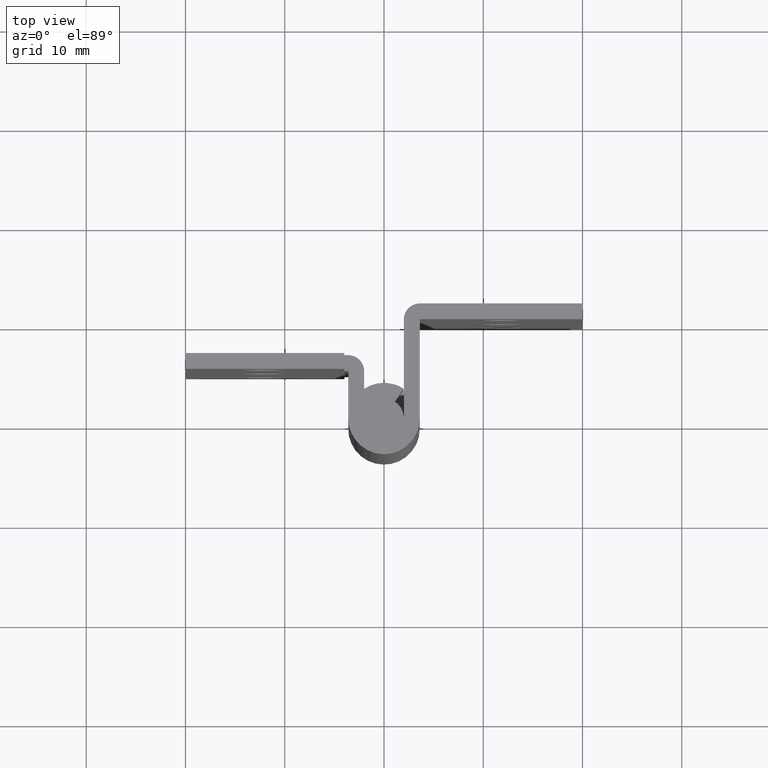
[diagram: clean part render]
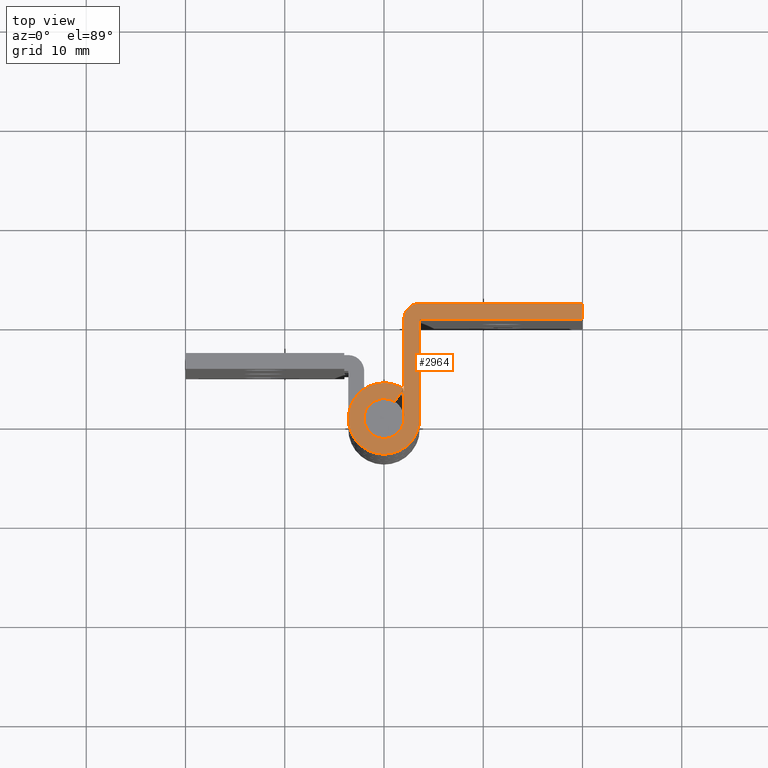
[diagram: same view with one face highlighted and labeled with its STEP entity id]
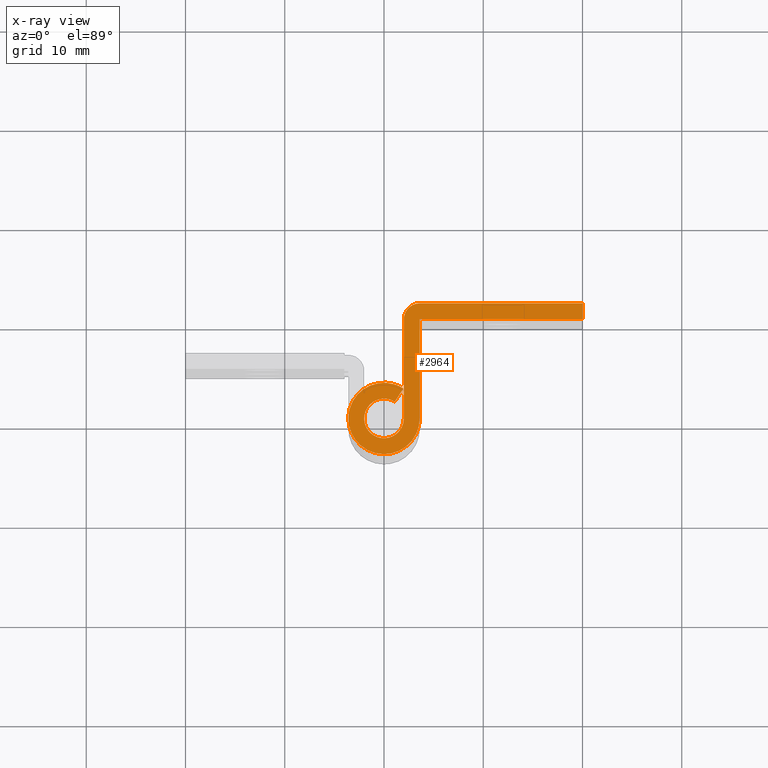
[diagram: x-ray of the same camera — body ghosted, the highlighted face saturated]
A machine part, top view. The second image highlights one B-rep face of the part: STEP entity #2964.
The next image is the same camera in x-ray: the body ghosted, the highlighted face saturated — about 0% of this face is hidden behind the body in this view.
In plain terms, the highlighted face is a freeform B-spline surface patch.
Its self-contained STEP definition (entity closure, byte-faithful):
#2736=CARTESIAN_POINT('',(3.600008000000110,11.599999000000020,60.0));
#2737=VERTEX_POINT('',#2736);
#2738=CARTESIAN_POINT('',(2.000008000000110,9.999999000000001,60.0));
#2739=VERTEX_POINT('',#2738);
#2740=CARTESIAN_POINT('',(3.600008000000110,11.599999000000000,60.0));
#2741=CARTESIAN_POINT('',(2.000008000000111,11.599999000000000,60.0));
#2742=CARTESIAN_POINT('',(2.000008000000110,9.999999000000001,60.0));
#2750=(BOUNDED_CURVE()B_SPLINE_CURVE(2,(#2740,#2741,#2742),.UNSPECIFIED.,.F.,.U.)CURVE()GEOMETRIC_REPRESENTATION_ITEM()QUASI_UNIFORM_CURVE()RATIONAL_B_SPLINE_CURVE((1.0,0.707106781186548,1.0))REPRESENTATION_ITEM(''));
#2751=EDGE_CURVE('',#2737,#2739,#2750,.T.);
#2874=CARTESIAN_POINT('',(-4.777198900374517,-4.358834767772723,60.0));
#2875=CARTESIAN_POINT('',(21.178750080096830,-4.358834767772723,60.0));
#2876=CARTESIAN_POINT('',(-4.777198900374517,12.359220053659460,60.0));
#2877=CARTESIAN_POINT('',(21.178750080096830,12.359220053659460,60.0));
#2878=B_SPLINE_SURFACE_WITH_KNOTS('',1,1,((#2874,#2876),(#2875,#2877)),.UNSPECIFIED.,.F.,.F.,.U.,(2,2),(2,2),(0.0,25.955948980471341),(0.0,16.718054821432190),.UNSPECIFIED.);
#2879=CARTESIAN_POINT('',(20.000008000000101,11.599999000000020,60.0));
#2880=VERTEX_POINT('',#2879);
#2881=CARTESIAN_POINT('',(20.000008000000101,11.599999000000020,60.0));
#2882=CARTESIAN_POINT('',(3.600008000000110,11.599999000000020,60.0));
#2883=QUASI_UNIFORM_CURVE('',1,(#2881,#2882),.UNSPECIFIED.,.F.,.U.);
#2884=EDGE_CURVE('',#2880,#2737,#2883,.T.);
#2885=ORIENTED_EDGE('',*,*,#2884,.T.);
#2886=ORIENTED_EDGE('',*,*,#2751,.T.);
#2887=CARTESIAN_POINT('',(2.000008000000110,0.0,60.0));
#2888=VERTEX_POINT('',#2887);
#2889=CARTESIAN_POINT('',(2.000008000000110,9.999999000000001,60.0));
#2890=CARTESIAN_POINT('',(2.000008000000110,0.0,60.0));
#2891=QUASI_UNIFORM_CURVE('',1,(#2889,#2890),.UNSPECIFIED.,.F.,.U.);
#2892=EDGE_CURVE('',#2739,#2888,#2891,.T.);
#2893=ORIENTED_EDGE('',*,*,#2892,.T.);
#2894=CARTESIAN_POINT('',(1.083337777777836,1.681183886206200,60.0));
#2895=VERTEX_POINT('',#2894);
#2896=CARTESIAN_POINT('',(2.000008000000110,0.0,60.0));
#2897=CARTESIAN_POINT('',(2.000013700662994,-1.554137616537944,59.999999999999993));
#2898=CARTESIAN_POINT('',(0.494032786995298,-1.938025685507206,60.0));
#2899=CARTESIAN_POINT('',(-1.011948126672398,-2.321913754476471,59.999999999999993));
#2900=CARTESIAN_POINT('',(-1.755939557685622,-0.957424786718082,60.0));
#2901=CARTESIAN_POINT('',(-2.499930988698846,0.407064181040306,59.999999999999993));
#2902=CARTESIAN_POINT('',(-1.361497235259572,1.465038031588542,60.0));
#2903=CARTESIAN_POINT('',(-0.223063481820299,2.523011882136779,59.999999999999993));
#2904=CARTESIAN_POINT('',(1.083337777777836,1.681183886206200,60.0));
#2912=(BOUNDED_CURVE()B_SPLINE_CURVE(2,(#2896,#2897,#2898,#2899,#2900,#2901,#2902,#2903,#2904),.UNSPECIFIED.,.F.,.U.)B_SPLINE_CURVE_WITH_KNOTS((3,2,2,2,3),(0.0,0.250000000000000,0.500000000000000,0.750000000000000,1.0),.UNSPECIFIED.)CURVE()GEOMETRIC_REPRESENTATION_ITEM()RATIONAL_B_SPLINE_CURVE((1.0,0.789623437178801,1.0,0.789623437178801,1.0,0.789623437178801,1.0,0.789623437178801,1.0))REPRESENTATION_ITEM(''));
#2913=EDGE_CURVE('',#2888,#2895,#2912,.T.);
#2914=ORIENTED_EDGE('',*,*,#2913,.T.);
#2915=CARTESIAN_POINT('',(1.950008000000110,3.026130995171160,60.0));
#2916=VERTEX_POINT('',#2915);
#2917=CARTESIAN_POINT('',(1.083337777777836,1.681183886206200,60.0));
#2918=CARTESIAN_POINT('',(1.950008000000110,3.026130995171160,60.0));
#2919=QUASI_UNIFORM_CURVE('',1,(#2917,#2918),.UNSPECIFIED.,.F.,.U.);
#2920=EDGE_CURVE('',#2895,#2916,#2919,.T.);
#2921=ORIENTED_EDGE('',*,*,#2920,.T.);
#2922=CARTESIAN_POINT('',(3.600000000000000,0.0,60.0));
#2923=VERTEX_POINT('',#2922);
#2924=CARTESIAN_POINT('',(3.600000000000000,0.0,60.0));
#2925=CARTESIAN_POINT('',(3.599999999999999,-2.797447709768299,60.000000000000007));
#2926=CARTESIAN_POINT('',(0.889237242302863,-3.488446233912972,60.0));
#2927=CARTESIAN_POINT('',(-1.821525515394274,-4.179444758057644,60.000000000000007));
#2928=CARTESIAN_POINT('',(-3.160698403834221,-1.723364616092545,60.0));
#2929=CARTESIAN_POINT('',(-4.499871292274170,0.732715525872555,60.000000000000007));
#2930=CARTESIAN_POINT('',(-2.450687649178755,2.637068456859379,60.0));
#2931=CARTESIAN_POINT('',(-0.401504006083340,4.541421387846202,60.000000000000007));
#2932=CARTESIAN_POINT('',(1.950008000000109,3.026130995171157,60.0));
#2940=(BOUNDED_CURVE()B_SPLINE_CURVE(2,(#2924,#2925,#2926,#2927,#2928,#2929,#2930,#2931,#2932),.UNSPECIFIED.,.F.,.U.)B_SPLINE_CURVE_WITH_KNOTS((3,2,2,2,3),(0.0,0.250000000000000,0.500000000000000,0.750000000000000,1.0),.UNSPECIFIED.)CURVE()GEOMETRIC_REPRESENTATION_ITEM()RATIONAL_B_SPLINE_CURVE((1.0,0.789623437178801,1.0,0.789623437178801,1.0,0.789623437178801,1.0,0.789623437178801,1.0))REPRESENTATION_ITEM(''));
#2941=EDGE_CURVE('',#2923,#2916,#2940,.T.);
#2942=ORIENTED_EDGE('',*,*,#2941,.F.);
#2943=CARTESIAN_POINT('',(3.599999000000095,10.0,60.0));
#2944=VERTEX_POINT('',#2943);
#2945=CARTESIAN_POINT('',(3.600000000000000,0.0,60.0));
#2946=CARTESIAN_POINT('',(3.599999000000095,10.0,60.0));
#2947=QUASI_UNIFORM_CURVE('',1,(#2945,#2946),.UNSPECIFIED.,.F.,.U.);
#2948=EDGE_CURVE('',#2923,#2944,#2947,.T.);
#2949=ORIENTED_EDGE('',*,*,#2948,.T.);
#2950=CARTESIAN_POINT('',(20.000008000000101,10.0,60.0));
#2951=VERTEX_POINT('',#2950);
#2952=CARTESIAN_POINT('',(3.599999000000095,10.0,60.0));
#2953=CARTESIAN_POINT('',(20.000008000000101,10.0,60.0));
#2954=QUASI_UNIFORM_CURVE('',1,(#2952,#2953),.UNSPECIFIED.,.F.,.U.);
#2955=EDGE_CURVE('',#2944,#2951,#2954,.T.);
#2956=ORIENTED_EDGE('',*,*,#2955,.T.);
#2957=CARTESIAN_POINT('',(20.000008000000101,10.0,60.0));
#2958=CARTESIAN_POINT('',(20.000008000000101,11.599999000000020,60.0));
#2959=QUASI_UNIFORM_CURVE('',1,(#2957,#2958),.UNSPECIFIED.,.F.,.U.);
#2960=EDGE_CURVE('',#2951,#2880,#2959,.T.);
#2961=ORIENTED_EDGE('',*,*,#2960,.T.);
#2962=EDGE_LOOP('',(#2885,#2886,#2893,#2914,#2921,#2942,#2949,#2956,#2961));
#2963=FACE_OUTER_BOUND('',#2962,.T.);
#2964=ADVANCED_FACE('',(#2963),#2878,.T.);